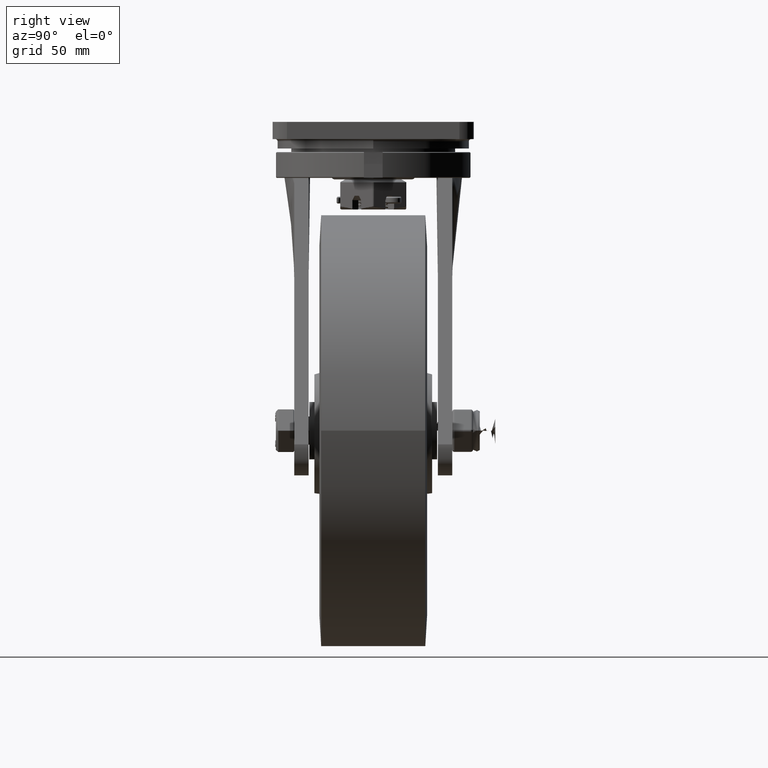
[diagram: clean part render]
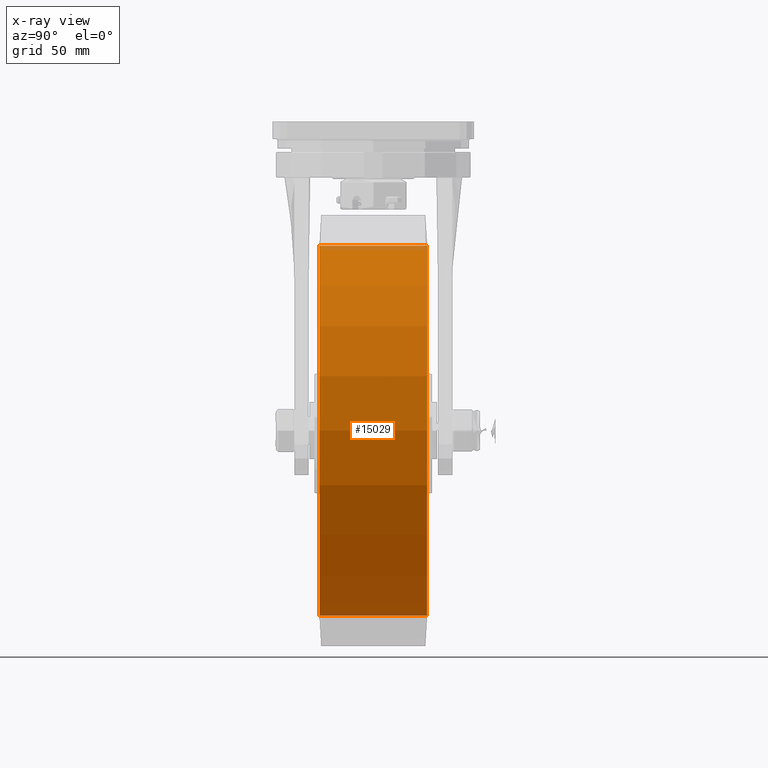
[diagram: x-ray — body ghosted, one internal face saturated and labeled with its STEP entity id]
A machine part, right view, then the same camera in x-ray: the body is ghosted and one INTERNAL B-rep face — a face not visible from any outside direction — is saturated and labeled: STEP entity #15029.
In plain terms, the highlighted cylindrical surface (bore or boss wall) has radius 129 mm, axis along (-0, 1, 0).
Its self-contained STEP definition (entity closure, byte-faithful):
#1383=FACE_OUTER_BOUND('',#2302,.T.);
#2302=EDGE_LOOP('',(#11526,#11527,#11528,#11529));
#3156=CIRCLE('',#16308,129.);
#3157=CIRCLE('',#16309,129.);
#4634=LINE('',#44098,#5481);
#5481=VECTOR('',#18604,129.);
#6561=VERTEX_POINT('',#44095);
#6562=VERTEX_POINT('',#44097);
#8360=EDGE_CURVE('',#6561,#6561,#3156,.T.);
#8361=EDGE_CURVE('',#6561,#6562,#4634,.T.);
#8362=EDGE_CURVE('',#6562,#6562,#3157,.T.);
#11526=ORIENTED_EDGE('',*,*,#8360,.F.);
#11527=ORIENTED_EDGE('',*,*,#8361,.T.);
#11528=ORIENTED_EDGE('',*,*,#8362,.T.);
#11529=ORIENTED_EDGE('',*,*,#8361,.F.);
#14510=CYLINDRICAL_SURFACE('',#16307,129.);
#15029=ADVANCED_FACE('',(#1383),#14510,.T.);
#16307=AXIS2_PLACEMENT_3D('',#44094,#18600,#18601);
#16308=AXIS2_PLACEMENT_3D('',#44096,#18602,#18603);
#16309=AXIS2_PLACEMENT_3D('',#44099,#18605,#18606);
#18600=DIRECTION('center_axis',(-3.49148336110938E-15,1.,0.));
#18601=DIRECTION('ref_axis',(-1.,-3.49148336110938E-15,0.));
#18602=DIRECTION('center_axis',(-3.49148336110938E-15,1.,0.));
#18603=DIRECTION('ref_axis',(-1.,-3.49148336110938E-15,0.));
#18604=DIRECTION('',(3.49148336110938E-15,-1.,0.));
#18605=DIRECTION('center_axis',(-3.49148336110938E-15,1.,0.));
#18606=DIRECTION('ref_axis',(-1.,-3.49148336110938E-15,0.));
#44094=CARTESIAN_POINT('Origin',(6.93889390390723E-15,0.,0.));
#44095=CARTESIAN_POINT('',(129.,37.5000000000004,1.57979437090009E-14));
#44096=CARTESIAN_POINT('Origin',(-1.23991732137695E-13,37.5,0.));
#44097=CARTESIAN_POINT('',(129.,-37.4999999999995,1.57979437090009E-14));
#44098=CARTESIAN_POINT('',(129.,4.5040135358311E-13,-1.57979437090009E-14));
#44099=CARTESIAN_POINT('Origin',(1.37869519945509E-13,-37.5,0.));